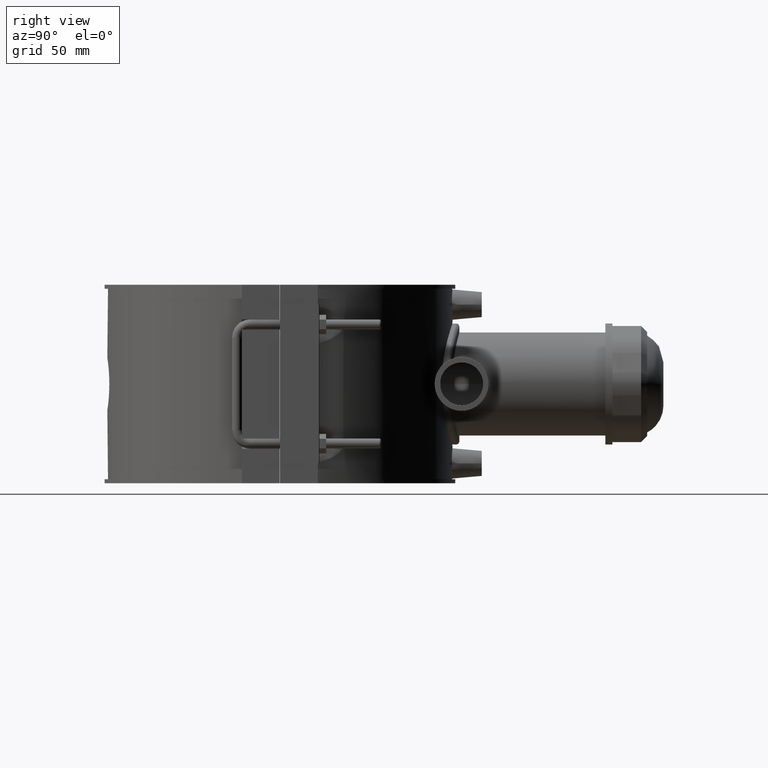
[diagram: clean part render]
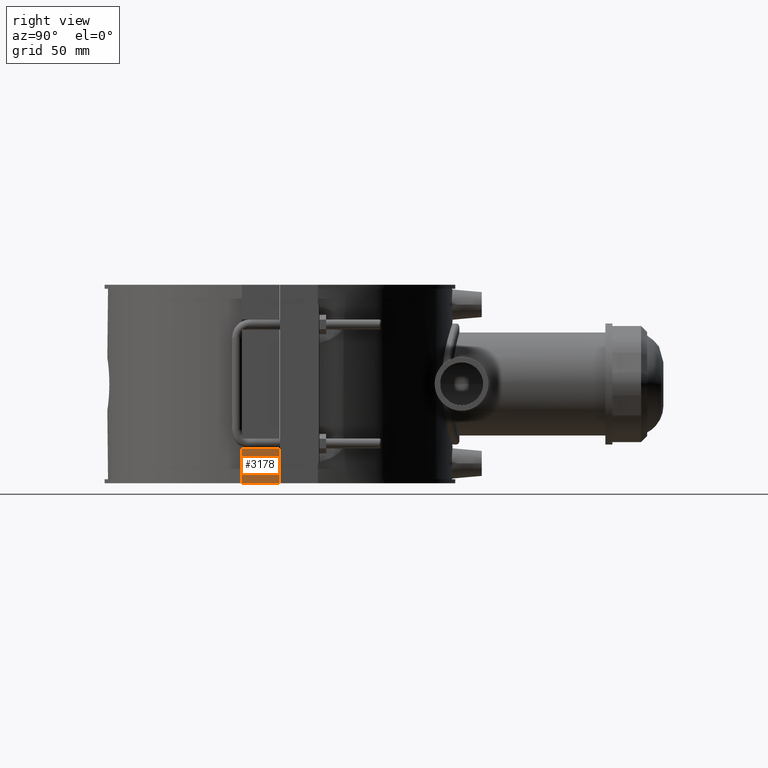
[diagram: same view with one face highlighted and labeled with its STEP entity id]
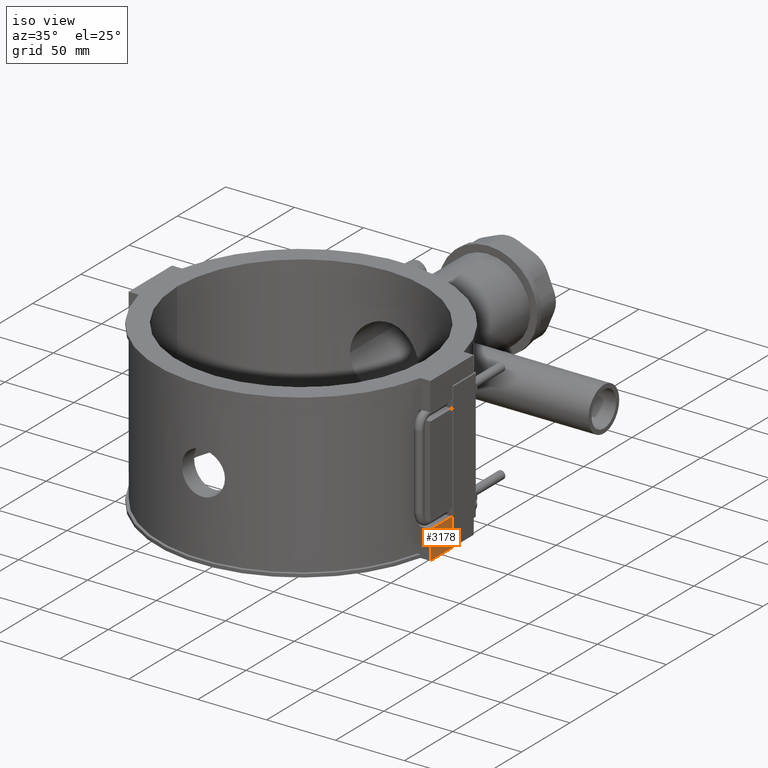
[diagram: same view with one face highlighted and labeled with its STEP entity id]
A machine part, right view. The second image highlights one B-rep face of the part: STEP entity #3178.
A second angle (iso view) of the same face is appended — the face is thin or edge-on in the first view.
In plain terms, the highlighted planar face has unit normal (1, 0, 0).
Its self-contained STEP definition (entity closure, byte-faithful):
#137=LINE('',#5428,#416);
#296=LINE('',#6430,#575);
#302=LINE('',#6441,#581);
#308=LINE('',#6452,#587);
#416=VECTOR('',#3789,20.6);
#575=VECTOR('',#4248,22.45);
#581=VECTOR('',#4258,20.6);
#587=VECTOR('',#4268,22.45);
#697=PLANE('',#3455);
#1031=FACE_OUTER_BOUND('',#1259,.T.);
#1259=EDGE_LOOP('',(#2871,#2872,#2873,#2874));
#1456=VERTEX_POINT('',#5425);
#1457=VERTEX_POINT('',#5427);
#1614=VERTEX_POINT('',#6429);
#1617=VERTEX_POINT('',#6440);
#1799=EDGE_CURVE('',#1456,#1457,#137,.T.);
#2038=EDGE_CURVE('',#1614,#1457,#296,.T.);
#2044=EDGE_CURVE('',#1617,#1614,#302,.T.);
#2050=EDGE_CURVE('',#1617,#1456,#308,.T.);
#2871=ORIENTED_EDGE('',*,*,#2038,.T.);
#2872=ORIENTED_EDGE('',*,*,#1799,.F.);
#2873=ORIENTED_EDGE('',*,*,#2050,.F.);
#2874=ORIENTED_EDGE('',*,*,#2044,.T.);
#3178=ADVANCED_FACE('',(#1031),#697,.T.);
#3455=AXIS2_PLACEMENT_3D('',#6451,#4266,#4267);
#3789=DIRECTION('',(0.,0.,1.));
#4248=DIRECTION('',(0.,-1.,0.));
#4258=DIRECTION('',(0.,0.,1.));
#4266=DIRECTION('center_axis',(1.,0.,0.));
#4267=DIRECTION('ref_axis',(0.,1.,0.));
#4268=DIRECTION('',(0.,-1.,0.));
#5425=CARTESIAN_POINT('',(109.5,-22.5,-59.));
#5427=CARTESIAN_POINT('',(109.5,-22.5,-38.4));
#5428=CARTESIAN_POINT('',(109.5,-22.5,0.));
#6429=CARTESIAN_POINT('',(109.5,-0.0499999999999989,-38.4));
#6430=CARTESIAN_POINT('',(109.5,-22.5,-38.4));
#6440=CARTESIAN_POINT('',(109.5,-0.0499999999999989,-59.));
#6441=CARTESIAN_POINT('',(109.5,-0.0499999999999989,-29.5));
#6451=CARTESIAN_POINT('Origin',(109.5,-22.5,0.));
#6452=CARTESIAN_POINT('',(109.5,-22.5,-59.));